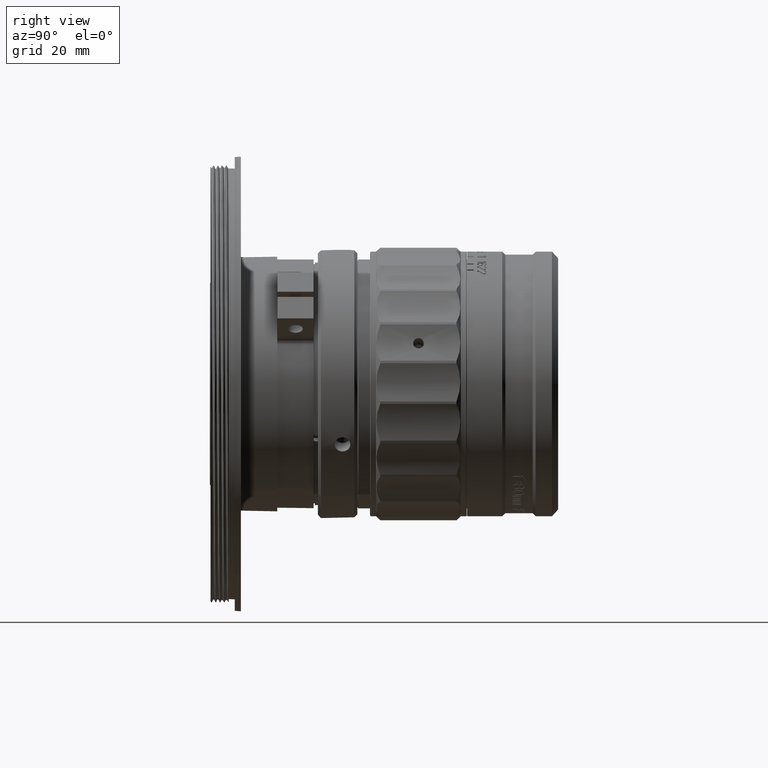
[diagram: clean part render]
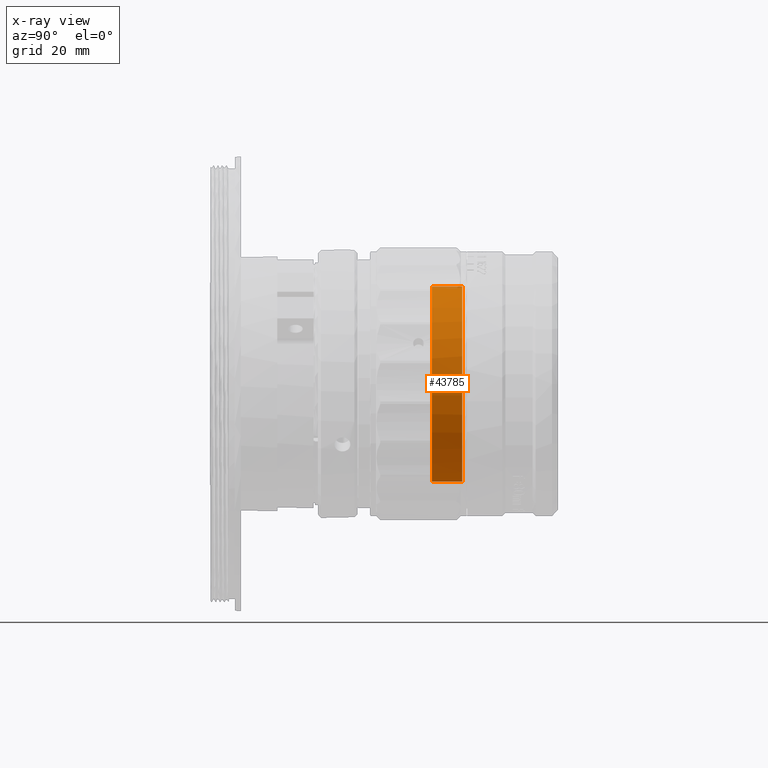
[diagram: x-ray — body ghosted, one internal face saturated and labeled with its STEP entity id]
A machine part, right view, then the same camera in x-ray: the body is ghosted and one INTERNAL B-rep face — a face not visible from any outside direction — is saturated and labeled: STEP entity #43785.
In plain terms, the highlighted face is a freeform B-spline surface patch.
Its self-contained STEP definition (entity closure, byte-faithful):
#439 = CARTESIAN_POINT ( 'NONE',  ( 13.03904263203714109, 42.35326239999999842, 32.77390246397200002 ) ) ;
#1146 = EDGE_LOOP ( 'NONE', ( #30013, #11161, #7977, #18377 ) ) ;
#1279 = VERTEX_POINT ( 'NONE', #39446 ) ;
#2023 = CARTESIAN_POINT ( 'NONE',  ( 28.70551129645736310, 42.35326240000000553, 44.64985023125338870 ) ) ;
#2387 = CARTESIAN_POINT ( 'NONE',  ( 17.24755115274665940, 42.35326240000000553, 64.52482741445733438 ) ) ;
#3370 = CARTESIAN_POINT ( 'NONE',  ( 22.46109898464545296, 37.35326240000000553, 32.77390246300000598 ) ) ;
#4249 = CARTESIAN_POINT ( 'NONE',  ( 13.03904263203714109, 37.35326239999999842, 32.77390246397200002 ) ) ;
#7539 = CARTESIAN_POINT ( 'NONE',  ( 13.03904262860135965, 42.35326239999999842, 64.94281503802800160 ) ) ;
#7556 = CARTESIAN_POINT ( 'NONE',  ( 29.12349891808399960, 42.35326239999999842, 46.75121562412001452 ) ) ;
#7977 = ORIENTED_EDGE ( 'NONE', *, *, #71811, .T. ) ;
#10405 = VERTEX_POINT ( 'NONE', #16945 ) ;
#11141 = CARTESIAN_POINT ( 'NONE',  ( 15.14618575987990212, 42.35326239999999842, 32.77390246591600231 ) ) ;
#11161 = ORIENTED_EDGE ( 'NONE', *, *, #57524, .T. ) ;
#13098 = CARTESIAN_POINT ( 'NONE',  ( 13.03904262860135965, 42.35326239999999842, 64.94281503802800160 ) ) ;
#14553 = CARTESIAN_POINT ( 'NONE',  ( 29.12349892293249454, 37.35326240000000553, 39.43630240265353137 ) ) ;
#15273 = CARTESIAN_POINT ( 'NONE',  ( 22.46109897804750233, 37.35326240000000553, 64.94281504286502127 ) ) ;
#15904 = CARTESIAN_POINT ( 'NONE',  ( 22.46109897804750233, 37.35326240000000553, 64.94281504286502127 ) ) ;
#16945 = CARTESIAN_POINT ( 'NONE',  ( 13.03904263203714109, 42.35326239999999842, 32.77390246397200002 ) ) ;
#17886 = CARTESIAN_POINT ( 'NONE',  ( 13.03904262860135965, 37.35326239999999842, 64.94281503802800160 ) ) ;
#18276 = CARTESIAN_POINT ( 'NONE',  ( 15.14618575987999449, 42.35326239999999842, 64.94281503608399930 ) ) ;
#18377 = ORIENTED_EDGE ( 'NONE', *, *, #37164, .F. ) ;
#18636 = CARTESIAN_POINT ( 'NONE',  ( 27.09277375304399271, 42.35326240000000553, 56.96036009248533816 ) ) ;
#18818 =( BOUNDED_CURVE ( )  B_SPLINE_CURVE ( 3, ( #49614, #15273, #38179, #21544, #14553, #37451, #72142 ),
 .UNSPECIFIED., .F., .F. ) 
 B_SPLINE_CURVE_WITH_KNOTS ( ( 4, 3, 4 ),
 ( -3.141592653589795336, -1.570796326794897668, 0.0000000000000000000 ),
 .UNSPECIFIED. ) 
 CURVE ( )  GEOMETRIC_REPRESENTATION_ITEM ( )  RATIONAL_B_SPLINE_CURVE ( ( 1.000000000000000000, 0.8047378540760217192, 0.8047378540760217192, 1.000000000000000000, 0.8047378540760217192, 0.8047378540760217192, 1.000000000000000000 ) ) 
 REPRESENTATION_ITEM ( '' )  );
#21076 = CARTESIAN_POINT ( 'NONE',  ( 29.12349892100000304, 42.35326239999999842, 48.85835875429898323 ) ) ;
#21441 = VERTEX_POINT ( 'NONE', #43710 ) ;
#21445 = CARTESIAN_POINT ( 'NONE',  ( 13.03904262640204159, 42.35326239999999842, 64.94281503900000985 ) ) ;
#21544 = CARTESIAN_POINT ( 'NONE',  ( 29.12349892100000304, 37.35326239999999842, 48.85835875429898323 ) ) ;
#23784 = B_SPLINE_CURVE_WITH_KNOTS ( 'NONE', 3,
 ( #13098, #18276, #2387, #40812, #63310, #69218, #18636, #41180, #63669, #7556, #2023, #28844, #57288, #45843, #62455, #52121, #11141, #439 ),
 .UNSPECIFIED., .F., .F.,
 ( 4, 2, 2, 2, 2, 2, 2, 2, 4 ),
 ( 0.0000000000000000000, 0.3926990816987244171, 0.7853981633974488341, 1.178097245096173307, 1.570796326794897668, 1.963495408493622030, 2.356194490192346613, 2.748893571891070753, 3.141592653589795336 ),
 .UNSPECIFIED. ) ;
#26608 = CARTESIAN_POINT ( 'NONE',  ( 29.12349891906751509, 42.35326240000000553, 58.28041510594444219 ) ) ;
#28844 = CARTESIAN_POINT ( 'NONE',  ( 27.09277385289463069, 42.35326239999999842, 40.75635740951461372 ) ) ;
#30013 = ORIENTED_EDGE ( 'NONE', *, *, #62246, .T. ) ;
#32882 = CARTESIAN_POINT ( 'NONE',  ( 13.03904262640204159, 37.35326239999999842, 64.94281503900000985 ) ) ;
#37164 = EDGE_CURVE ( 'NONE', #1279, #10405, #23784, .T. ) ;
#37451 = CARTESIAN_POINT ( 'NONE',  ( 22.46109898464545296, 37.35326240000000553, 32.77390246300000598 ) ) ;
#38179 = CARTESIAN_POINT ( 'NONE',  ( 29.12349891906751509, 37.35326240000000553, 58.28041510594444219 ) ) ;
#39446 = CARTESIAN_POINT ( 'NONE',  ( 13.03904262860135965, 42.35326239999999842, 64.94281503802800160 ) ) ;
#40568 = CARTESIAN_POINT ( 'NONE',  ( 13.03904263203714109, 37.35326239999999842, 32.77390246397200002 ) ) ;
#40574 = B_SPLINE_CURVE_WITH_KNOTS ( 'NONE', 1,
 ( #7539, #17886 ),
 .UNSPECIFIED., .F., .F.,
 ( 2, 2 ),
 ( -1.000000000000000000, 0.0000000000000000000 ),
 .UNSPECIFIED. ) ;
#40812 = CARTESIAN_POINT ( 'NONE',  ( 21.14104397448533845, 42.35326239999999842, 62.91208997089464816 ) ) ;
#41180 = CARTESIAN_POINT ( 'NONE',  ( 28.70551139630800108, 42.35326239999999842, 53.06686727074664134 ) ) ;
#42126 = VERTEX_POINT ( 'NONE', #40568 ) ;
#43613 = CARTESIAN_POINT ( 'NONE',  ( 29.12349892293249454, 37.35326240000000553, 39.43630240265352427 ) ) ;
#43710 = CARTESIAN_POINT ( 'NONE',  ( 13.03904262860135965, 37.35326239999999842, 64.94281503802800160 ) ) ;
#43785 = ADVANCED_FACE ( 'NONE', ( #55041 ), #47820, .F. ) ;
#45843 = CARTESIAN_POINT ( 'NONE',  ( 22.92249550737196273, 42.35326239999999842, 35.99495549123062688 ) ) ;
#47820 =( BOUNDED_SURFACE ( )  B_SPLINE_SURFACE ( 1, 3, ( 
 ( #66481, #65022, #60935, #21076, #26608, #49509, #21445 ),
 ( #48060, #3370, #43613, #70573, #71305, #15904, #32882 ) ),
 .UNSPECIFIED., .F., .F., .F. ) 
 B_SPLINE_SURFACE_WITH_KNOTS ( ( 2, 2 ),
 ( 4, 3, 4 ),
 ( 0.0000000000000000000, 1.000000000000000000 ),
 ( 0.0000000000000000000, 0.5000000000000000000, 1.000000000000000000 ),
 .UNSPECIFIED. ) 
 GEOMETRIC_REPRESENTATION_ITEM ( )  RATIONAL_B_SPLINE_SURFACE ( (
 ( 1.000000000000000000, 0.8047378540760217192, 0.8047378540760217192, 1.000000000000000000, 0.8047378540760217192, 0.8047378540760217192, 1.000000000000000000),
 ( 1.000000000000000000, 0.8047378540760217192, 0.8047378540760217192, 1.000000000000000000, 0.8047378540760217192, 0.8047378540760217192, 1.000000000000000000) ) ) 
 REPRESENTATION_ITEM ( '' )  SURFACE ( )  );
#48060 = CARTESIAN_POINT ( 'NONE',  ( 13.03904263300000110, 37.35326239999999842, 32.77390246299999887 ) ) ;
#49509 = CARTESIAN_POINT ( 'NONE',  ( 22.46109897804750233, 42.35326240000000553, 64.94281504286502127 ) ) ;
#49614 = CARTESIAN_POINT ( 'NONE',  ( 13.03904262860135965, 37.35326239999999842, 64.94281503802800160 ) ) ;
#52121 = CARTESIAN_POINT ( 'NONE',  ( 17.24755115274662387, 42.35326239999999842, 33.19188998769197951 ) ) ;
#52281 = B_SPLINE_CURVE_WITH_KNOTS ( 'NONE', 1,
 ( #4249, #72540 ),
 .UNSPECIFIED., .F., .F.,
 ( 2, 2 ),
 ( -1.000000000000000000, 0.0000000000000000000 ),
 .UNSPECIFIED. ) ;
#55041 = FACE_OUTER_BOUND ( 'NONE', #1146, .T. ) ;
#57288 = CARTESIAN_POINT ( 'NONE',  ( 25.90244599262003433, 42.35326240000000553, 38.97490577677738344 ) ) ;
#57524 = EDGE_CURVE ( 'NONE', #21441, #42126, #18818, .T. ) ;
#60935 = CARTESIAN_POINT ( 'NONE',  ( 29.12349892293249454, 42.35326240000000553, 39.43630240265352427 ) ) ;
#62246 = EDGE_CURVE ( 'NONE', #1279, #21441, #40574, .T. ) ;
#62455 = CARTESIAN_POINT ( 'NONE',  ( 21.14104397448537398, 42.35326240000000553, 34.80462763095602696 ) ) ;
#63310 = CARTESIAN_POINT ( 'NONE',  ( 22.92249560722265045, 42.35326240000000553, 61.72176211062001983 ) ) ;
#63669 = CARTESIAN_POINT ( 'NONE',  ( 29.12349891808399605, 42.35326240000000553, 50.96550187787996578 ) ) ;
#65022 = CARTESIAN_POINT ( 'NONE',  ( 22.46109898464545296, 42.35326240000000553, 32.77390246300000598 ) ) ;
#66481 = CARTESIAN_POINT ( 'NONE',  ( 13.03904263300000110, 42.35326239999999842, 32.77390246299999887 ) ) ;
#69218 = CARTESIAN_POINT ( 'NONE',  ( 25.90244589276933951, 42.35326239999999842, 58.74181162537197309 ) ) ;
#70573 = CARTESIAN_POINT ( 'NONE',  ( 29.12349892100000304, 37.35326239999999842, 48.85835875429898323 ) ) ;
#71305 = CARTESIAN_POINT ( 'NONE',  ( 29.12349891906751509, 37.35326240000000553, 58.28041510594444219 ) ) ;
#71811 = EDGE_CURVE ( 'NONE', #42126, #10405, #52281, .T. ) ;
#72142 = CARTESIAN_POINT ( 'NONE',  ( 13.03904263203714109, 37.35326239999999842, 32.77390246397200002 ) ) ;
#72540 = CARTESIAN_POINT ( 'NONE',  ( 13.03904263203714109, 42.35326239999999842, 32.77390246397200002 ) ) ;